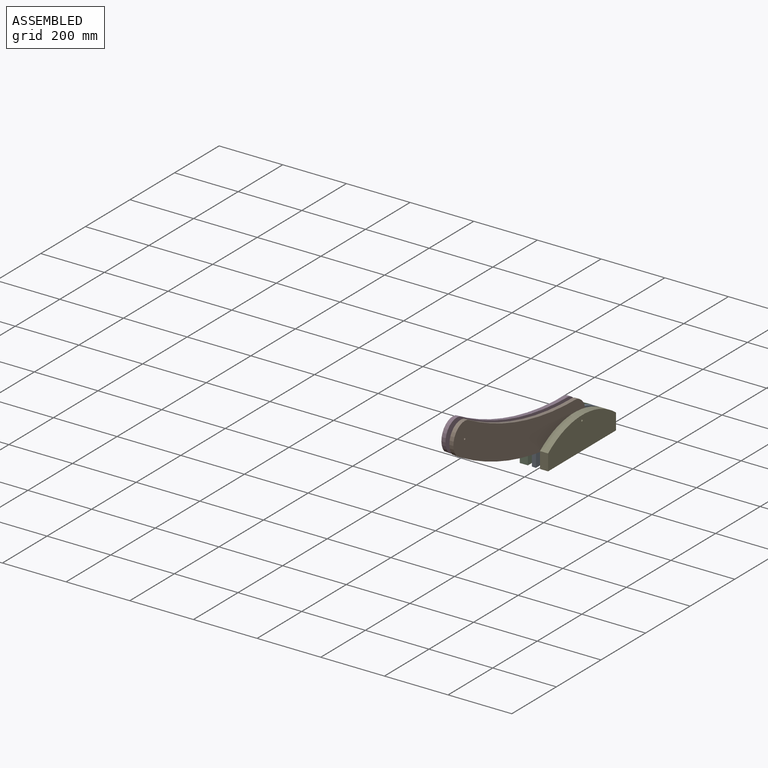
[diagram: assembled view]
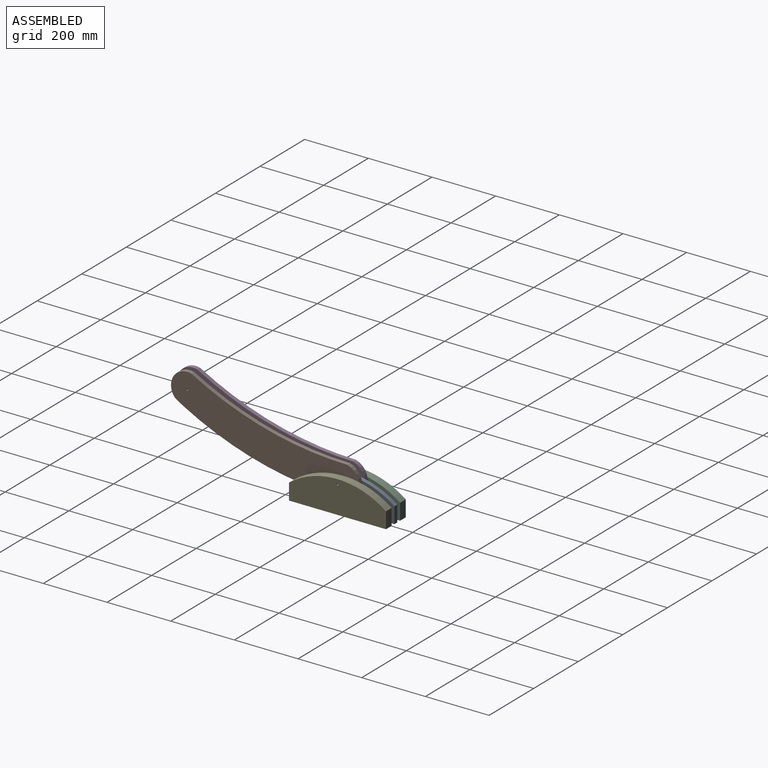
[diagram: assembled view, second angle]
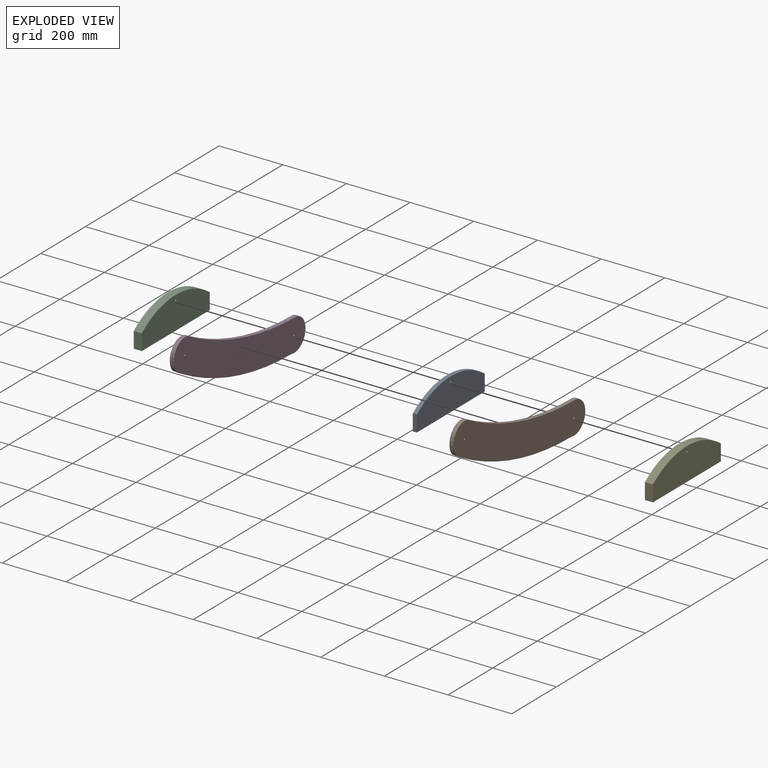
[diagram: exploded view]
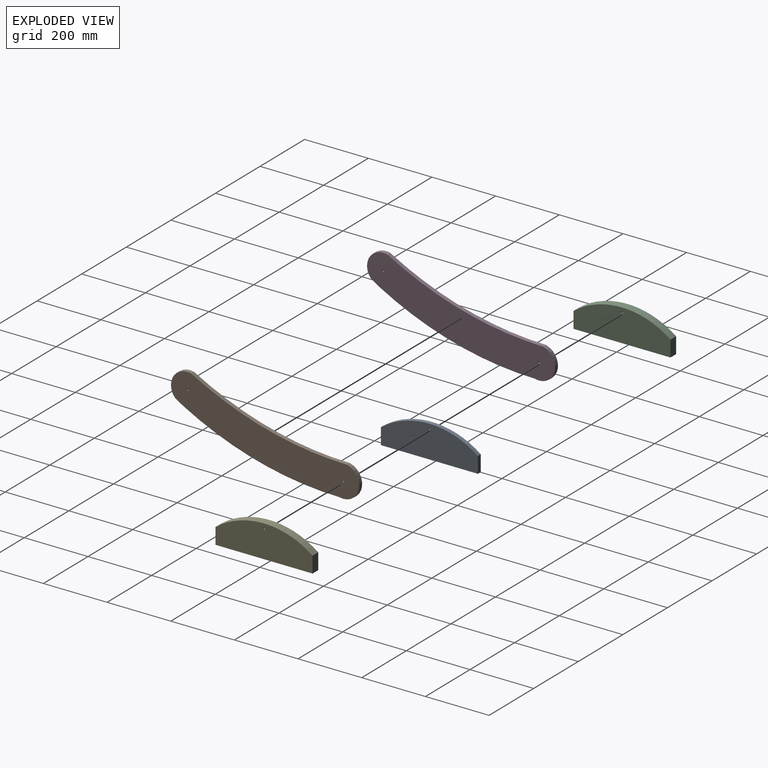
[diagram: exploded view, second angle]
ASSEMBLY  parts=5 mates=4
PART A: 7 faces, bbox 12.7x304.8x101.6 mm
  f0: plane 50.8x12.7mm, normal (0,-1,0), area 645.2mm2, adj f1,f2,f4,f5
  f1: plane 304.8x101.6mm, normal (-1,0,0), area 25996.4mm2, adj f0,f3,f4,f5,f6
  f2: plane 304.8x101.6mm, normal (1,0,0), area 25996.4mm2, adj f0,f3,f4,f5,f6
  f3: plane 50.8x12.7mm, normal (0,1,0), area 645.2mm2, adj f1,f2,f4,f5
  f4: plane 304.8x12.7mm, normal (0,0,-1), area 3871mm2, adj f0,f1,f2,f3
  f5: cylinder r=254mm len=304.8mm, axis (1,0,0), area 4151.6mm2, adj f0,f1,f2,f3
  f6: cylinder r=3.38mm len=12.7mm, axis (1,0,0), area 269.6mm2, adj f1,f2
PART B: 10 faces, bbox 12.7x133.7x608.3 mm
  f0: cylinder r=3.38mm len=12.7mm, axis (-1,0,0), area 137.2mm2, adj f6,f7,f8
  f1: cylinder r=1015.48mm len=506.66mm, axis (-1,0,0), area 6503.2mm2, adj f2,f5,f6,f7
  f2: cylinder r=50.8mm len=92.71mm, axis (-1,0,0), area 1639.4mm2, adj f1,f3,f6,f7
  f3: plane 28.71x12.7mm, normal (0,-0.96,0.3), area 381.7mm2, adj f2,f4,f6,f7
  f4: cylinder r=1015.48mm len=506.66mm, axis (-1,0,0), area 6503.2mm2, adj f3,f5,f6,f7
  f5: cylinder r=50.8mm len=101.6mm, axis (-1,0,0), area 2026.8mm2, adj f1,f4,f6,f7
  f6: plane 608.26x133.71mm, normal (1,0,0), area 59465mm2, adj f0,f1,f2,f3,f4,f5,f8,f9
  f7: plane 608.26x133.71mm, normal (-1,0,0), area 59465mm2, adj f0,f1,f2,f3,f4,f5,f8,f9
  f8: cylinder r=3.38mm len=12.7mm, axis (1,0,0), area 137.2mm2, adj f0,f6,f7
  f9: cylinder r=3.38mm len=12.7mm, axis (-1,0,0), area 269.6mm2, adj f6,f7
PART C: 8 faces, bbox 25.4x304.8x101.6 mm
  f0: cylinder r=3.38mm len=25.4mm, axis (-1,0,0), area 274.5mm2, adj f1,f4,f7
  f1: plane 304.8x101.6mm, normal (-1,0,0), area 25995.1mm2, adj f0,f2,f3,f5,f6,f7
  f2: plane 50.8x25.4mm, normal (0,1,0), area 1290.3mm2, adj f1,f4,f5,f6
  f3: plane 50.8x25.4mm, normal (0,-1,0), area 1290.3mm2, adj f1,f4,f5,f6
  f4: plane 304.8x101.6mm, normal (1,0,0), area 25995.1mm2, adj f0,f2,f3,f5,f6,f7
  f5: plane 304.8x25.4mm, normal (0,0,-1), area 7741.9mm2, adj f1,f2,f3,f4
  f6: cylinder r=254mm len=304.8mm, axis (-1,0,0), area 8303.2mm2, adj f1,f2,f3,f4
  f7: cylinder r=3.38mm len=25.4mm, axis (1,0,0), area 274.5mm2, adj f0,f1,f4
PART D: same geometry as B
PART E: same geometry as C
PLACE A t=(67.97,-5.39,-93.09)mm fixed
PLACE B rot(axis=(1,0,0),75.4deg) t=(93.03,152.54,28.84)mm
PLACE C t=(67.63,-5.36,-92.9)mm
PLACE D rot(axis=(1,0,0),75.1deg) t=(67.63,152.15,28.13)mm
PLACE E t=(131.13,-5.36,-92.9)mm
MATE revolute A.f6 <-> B.f8  axis (1,0,0) through (6.16,-5.36,70.11)mm
MATE revolute D.f0 <-> C.f0  axis (-1,0,0) through (-19.24,-5.36,70.11)mm
MATE revolute A.f6 <-> D.f0  axis (-1,0,0) through (-6.54,-5.36,70.11)mm
MATE revolute B.f8 <-> E.f0  axis (1,0,0) through (18.86,-5.36,70.11)mm
